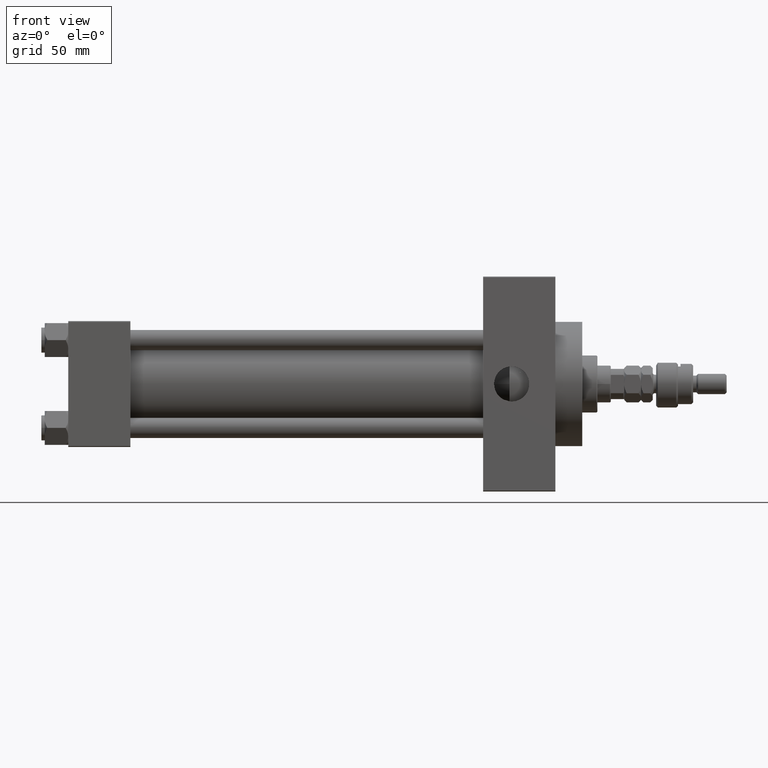
[diagram: clean part render]
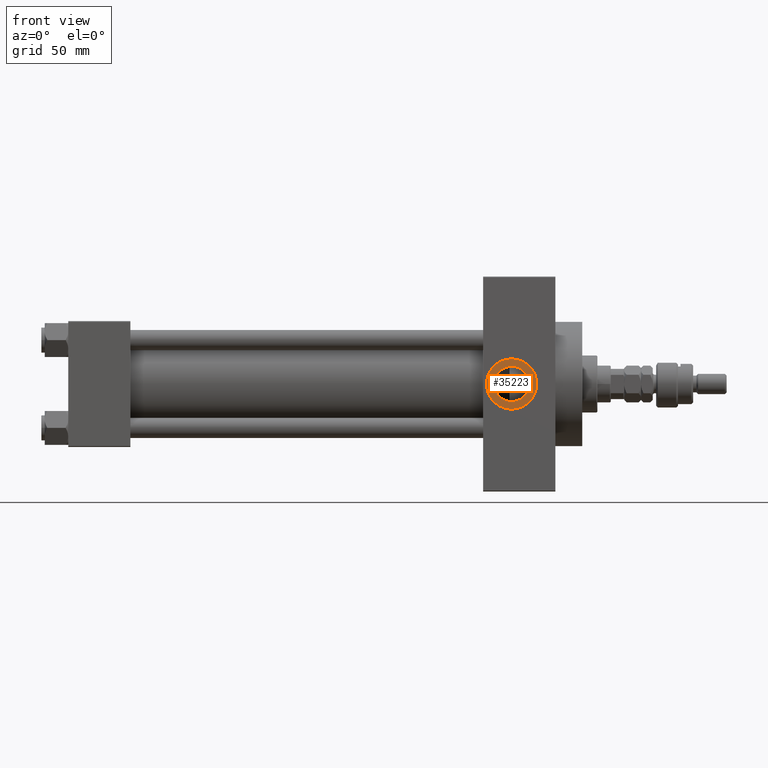
[diagram: same view with one face highlighted and labeled with its STEP entity id]
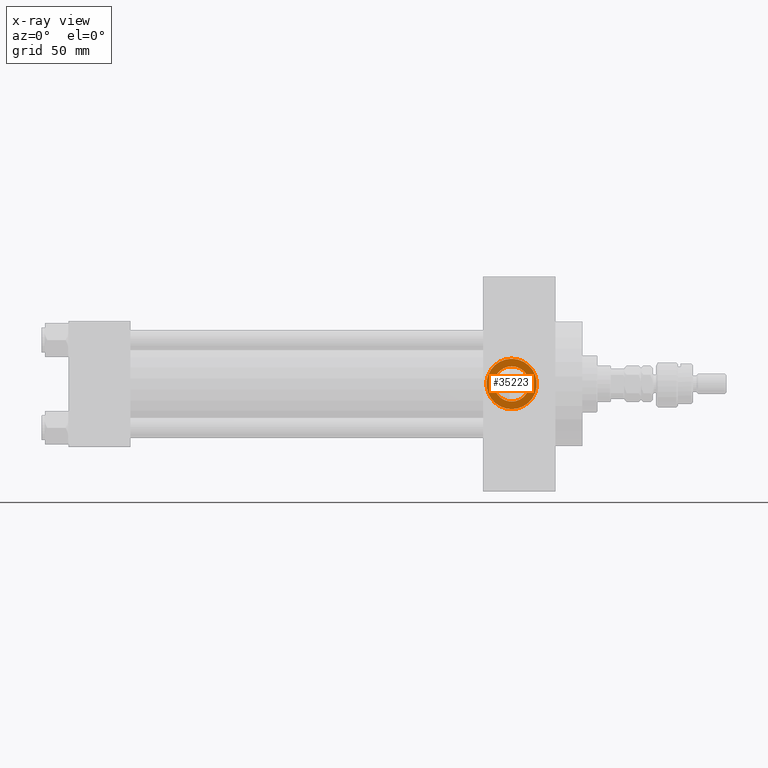
[diagram: x-ray of the same camera — body ghosted, the highlighted face saturated]
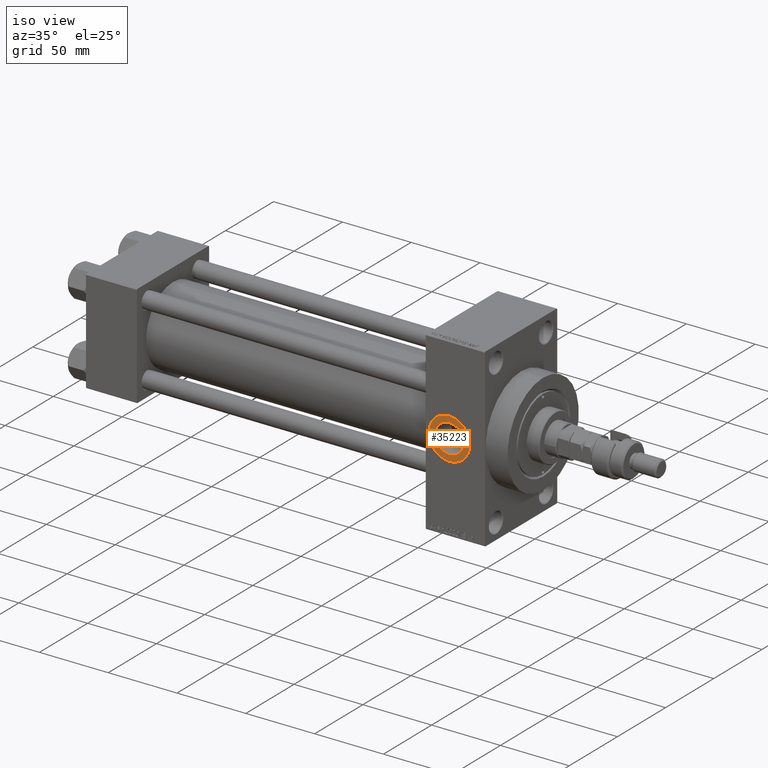
[diagram: same view with one face highlighted and labeled with its STEP entity id]
A machine part, front view. The second image highlights one B-rep face of the part: STEP entity #35223.
The next image is the same camera in x-ray: the body ghosted, the highlighted face saturated — about 0% of this face is hidden behind the body in this view.
A second angle (iso view) of the same face is appended — the face is thin or edge-on in the first view.
In plain terms, the highlighted planar face has unit normal (0, -1, -0).
Its self-contained STEP definition (entity closure, byte-faithful):
#2152 = AXIS2_PLACEMENT_3D ( 'NONE', #32337, #28114, #20434 ) ;
#2480 = CARTESIAN_POINT ( 'NONE',  ( 264.0000000000000000, -37.29999999999999005, -15.00000000000002487 ) ) ;
#3117 = AXIS2_PLACEMENT_3D ( 'NONE', #48979, #12723, #28857 ) ;
#3662 = DIRECTION ( 'NONE',  ( 0.000000000000000000, 0.000000000000000000, -1.000000000000000000 ) ) ;
#5550 = ORIENTED_EDGE ( 'NONE', *, *, #40842, .F. ) ;
#7222 = ORIENTED_EDGE ( 'NONE', *, *, #19501, .F. ) ;
#7622 = DIRECTION ( 'NONE',  ( 0.000000000000000000, -1.000000000000000000, -8.673617379884036705E-17 ) ) ;
#8679 = VERTEX_POINT ( 'NONE', #14787 ) ;
#10037 = DIRECTION ( 'NONE',  ( 0.000000000000000000, 8.673617379884036705E-17, -1.000000000000000000 ) ) ;
#12723 = DIRECTION ( 'NONE',  ( 0.000000000000000000, -1.000000000000000000, -8.673617379884036705E-17 ) ) ;
#14270 = DIRECTION ( 'NONE',  ( 0.000000000000000000, -1.000000000000000000, -8.673617379884036705E-17 ) ) ;
#14787 = CARTESIAN_POINT ( 'NONE',  ( 264.0000000000000000, -37.29999999999999005, 15.00000000000002487 ) ) ;
#15215 = CIRCLE ( 'NONE', #20271, 10.47999999999998622 ) ;
#16339 = DIRECTION ( 'NONE',  ( 0.000000000000000000, 0.000000000000000000, -1.000000000000000000 ) ) ;
#19501 = EDGE_CURVE ( 'NONE', #35978, #22402, #43542, .T. ) ;
#20271 = AXIS2_PLACEMENT_3D ( 'NONE', #43871, #7622, #3662 ) ;
#20395 = CIRCLE ( 'NONE', #30548, 15.00000000000002487 ) ;
#20434 = DIRECTION ( 'NONE',  ( 0.000000000000000000, 0.000000000000000000, -1.000000000000000000 ) ) ;
#21741 = CARTESIAN_POINT ( 'NONE',  ( 264.0000000000000000, -37.29999999999999005, 10.47999999999998622 ) ) ;
#22402 = VERTEX_POINT ( 'NONE', #21741 ) ;
#23925 = EDGE_CURVE ( 'NONE', #8679, #29400, #34409, .T. ) ;
#28114 = DIRECTION ( 'NONE',  ( 0.000000000000000000, -1.000000000000000000, -8.673617379884036705E-17 ) ) ;
#28857 = DIRECTION ( 'NONE',  ( 0.000000000000000000, 0.000000000000000000, -1.000000000000000000 ) ) ;
#29400 = VERTEX_POINT ( 'NONE', #2480 ) ;
#29826 = ORIENTED_EDGE ( 'NONE', *, *, #23925, .T. ) ;
#30548 = AXIS2_PLACEMENT_3D ( 'NONE', #32730, #48888, #16339 ) ;
#31060 = ORIENTED_EDGE ( 'NONE', *, *, #44140, .T. ) ;
#32337 = CARTESIAN_POINT ( 'NONE',  ( 264.0000000000000000, -37.29999999999999005, 1.734723475976808635E-17 ) ) ;
#32730 = CARTESIAN_POINT ( 'NONE',  ( 264.0000000000000000, -37.29999999999999005, 1.734723475976807403E-17 ) ) ;
#34122 = CARTESIAN_POINT ( 'NONE',  ( 264.0000000000000000, -37.29999999999999005, 1.734723475976807403E-17 ) ) ;
#34376 = FACE_BOUND ( 'NONE', #50098, .T. ) ;
#34409 = CIRCLE ( 'NONE', #3117, 15.00000000000002487 ) ;
#35223 = ADVANCED_FACE ( 'NONE', ( #34376, #46301 ), #51060, .T. ) ;
#35978 = VERTEX_POINT ( 'NONE', #36787 ) ;
#36787 = CARTESIAN_POINT ( 'NONE',  ( 264.0000000000000000, -37.29999999999999005, -10.47999999999998622 ) ) ;
#40455 = AXIS2_PLACEMENT_3D ( 'NONE', #34122, #14270, #10037 ) ;
#40842 = EDGE_CURVE ( 'NONE', #22402, #35978, #15215, .T. ) ;
#43535 = EDGE_LOOP ( 'NONE', ( #31060, #29826 ) ) ;
#43542 = CIRCLE ( 'NONE', #2152, 10.47999999999998622 ) ;
#43871 = CARTESIAN_POINT ( 'NONE',  ( 264.0000000000000000, -37.29999999999999005, 1.734723475976808635E-17 ) ) ;
#44140 = EDGE_CURVE ( 'NONE', #29400, #8679, #20395, .T. ) ;
#46301 = FACE_OUTER_BOUND ( 'NONE', #43535, .T. ) ;
#48888 = DIRECTION ( 'NONE',  ( 0.000000000000000000, -1.000000000000000000, -8.673617379884036705E-17 ) ) ;
#48979 = CARTESIAN_POINT ( 'NONE',  ( 264.0000000000000000, -37.29999999999999005, 1.734723475976807403E-17 ) ) ;
#50098 = EDGE_LOOP ( 'NONE', ( #7222, #5550 ) ) ;
#51060 = PLANE ( 'NONE',  #40455 ) ;